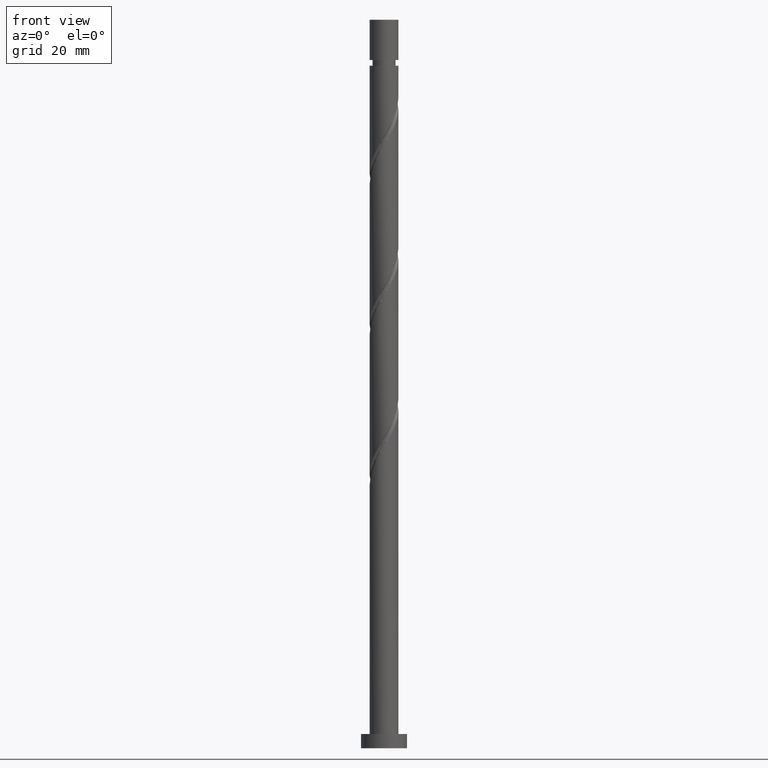
[diagram: clean part render]
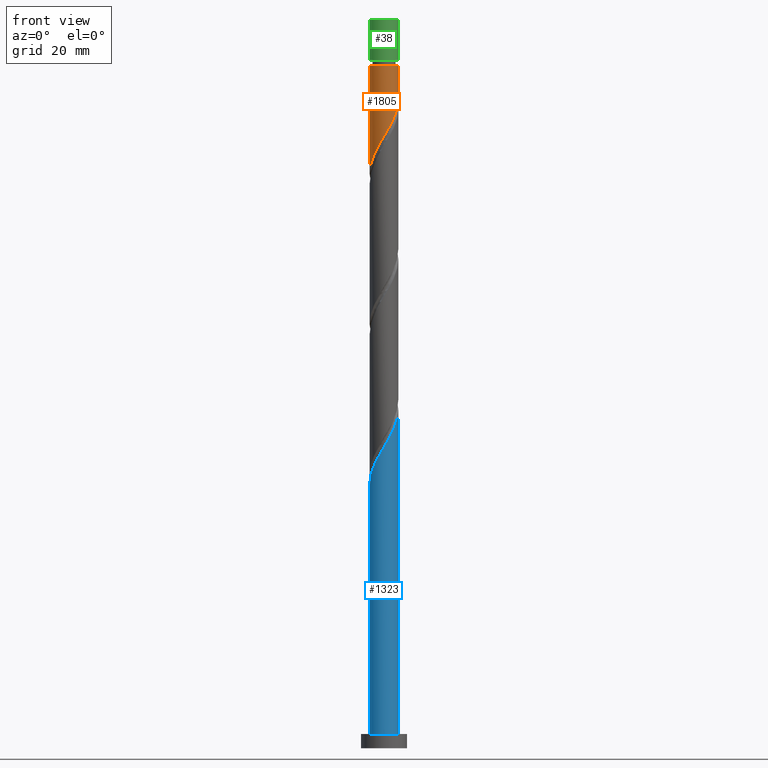
[diagram: same view with three faces highlighted in distinct colors, each labeled with its STEP entity id]
A machine part, front view with three faces highlighted in distinct colors.
Their STEP definitions:

[orange] entity #1805 — the highlighted cylindrical surface (edge-blend (fillet) strip) has radius 5 mm, axis along (-0, -0, -1).
#27 = CARTESIAN_POINT ( 'NONE',  ( 3.983038583135037225, -3.022483026463118172, 221.0952963200259376 ) ) ;
#37 = VERTEX_POINT ( 'NONE', #1499 ) ;
#49 = CARTESIAN_POINT ( 'NONE',  ( -5.000000000000000888, 7.589755835696142587E-15, 200.2698133979319266 ) ) ;
#105 = LINE ( 'NONE', #1458, #1373 ) ;
#136 = VECTOR ( 'NONE', #1096, 1000.000000000000000 ) ;
#146 = CARTESIAN_POINT ( 'NONE',  ( 4.323590631524821148, -2.573702359565720688, 222.0327963200259376 ) ) ;
#176 = CARTESIAN_POINT ( 'NONE',  ( 4.900000000000001243, -0.9949874371066227408, 224.8452963200259092 ) ) ;
#200 = ORIENTED_EDGE ( 'NONE', *, *, #1755, .T. ) ;
#218 = CARTESIAN_POINT ( 'NONE',  ( -5.000000000000002665, -0.06016448583194783373, 200.3701760861570449 ) ) ;
#264 = ORIENTED_EDGE ( 'NONE', *, *, #558, .T. ) ;
#294 = CARTESIAN_POINT ( 'NONE',  ( 5.000000000000000888, -1.119433014114475214E-15, 226.5198133979320119 ) ) ;
#365 = CARTESIAN_POINT ( 'NONE',  ( 0.000000000000000000, 0.000000000000000000, 254.0000000000000000 ) ) ;
#399 = CARTESIAN_POINT ( 'NONE',  ( 0.000000000000000000, 0.000000000000000000, 237.9702963200258807 ) ) ;
#450 = CARTESIAN_POINT ( 'NONE',  ( -1.547084842617166611, -4.787891840297518797, 210.7827963200258807 ) ) ;
#459 = CARTESIAN_POINT ( 'NONE',  ( 3.642486534745251969, -3.471263693360514768, 220.1577963200258807 ) ) ;
#475 = CARTESIAN_POINT ( 'NONE',  ( 2.778732953414366325, -4.194761370835347059, 218.2827963200259376 ) ) ;
#531 = DIRECTION ( 'NONE',  ( -1.000000000000000000, 0.000000000000000000, 0.000000000000000000 ) ) ;
#549 = ORIENTED_EDGE ( 'NONE', *, *, #790, .F. ) ;
#558 = EDGE_CURVE ( 'NONE', #1609, #1164, #989, .T. ) ;
#593 = CARTESIAN_POINT ( 'NONE',  ( 0.1203115516804378615, -4.998552303470702896, 213.5952963200259660 ) ) ;
#601 = CARTESIAN_POINT ( 'NONE',  ( 5.000000000000001776, -0.5025189076296011637, 225.6815423189683827 ) ) ;
#681 = DIRECTION ( 'NONE',  ( -0.000000000000000000, -0.000000000000000000, -1.000000000000000000 ) ) ;
#690 = DIRECTION ( 'NONE',  ( -0.000000000000000000, -0.000000000000000000, -1.000000000000000000 ) ) ;
#768 = CARTESIAN_POINT ( 'NONE',  ( 4.555741235911171749, -2.060393601091444093, 222.9702963200259376 ) ) ;
#776 = CARTESIAN_POINT ( 'NONE',  ( 4.999999999999984013, 6.123233995736755436E-16, 237.9702963200258807 ) ) ;
#790 = EDGE_CURVE ( 'NONE', #1609, #37, #105, .T. ) ;
#837 = CYLINDRICAL_SURFACE ( 'NONE', #1274, 5.000000000000000000 ) ;
#858 = CARTESIAN_POINT ( 'NONE',  ( -5.000000000000000888, 7.589755835696142587E-15, 200.2698133979319266 ) ) ;
#932 = CARTESIAN_POINT ( 'NONE',  ( -4.707916197378419376, -1.775642098820950698, 203.2827963200259092 ) ) ;
#972 = DIRECTION ( 'NONE',  ( -1.000000000000000000, 0.000000000000000000, 0.000000000000000000 ) ) ;
#976 = EDGE_CURVE ( 'NONE', #37, #1519, #1298, .T. ) ;
#989 = CIRCLE ( 'NONE', #1742, 4.999999999999984013 ) ;
#1024 = CARTESIAN_POINT ( 'NONE',  ( -2.060393601091443649, -4.555741235911171749, 209.8452963200260228 ) ) ;
#1034 = CARTESIAN_POINT ( 'NONE',  ( -2.573702359565720688, -4.323590631524821148, 208.9077963200258523 ) ) ;
#1054 = CARTESIAN_POINT ( 'NONE',  ( 2.277187526117657956, -4.451338784106884106, 217.3452963200259376 ) ) ;
#1088 = CARTESIAN_POINT ( 'NONE',  ( -4.846456322308672959, -1.229577616888952507, 202.3452963200259660 ) ) ;
#1096 = DIRECTION ( 'NONE',  ( -0.000000000000000000, -0.000000000000000000, -1.000000000000000000 ) ) ;
#1106 = FACE_OUTER_BOUND ( 'NONE', #1405, .T. ) ;
#1164 = VERTEX_POINT ( 'NONE', #1508 ) ;
#1174 = CARTESIAN_POINT ( 'NONE',  ( -0.4428900315960780931, -5.012108159702478360, 212.6577963200258807 ) ) ;
#1185 = CARTESIAN_POINT ( 'NONE',  ( 4.787891840297518797, -1.547084842617166833, 223.9077963200259092 ) ) ;
#1216 = CARTESIAN_POINT ( 'NONE',  ( -4.998552303470702896, -0.1203115516804380697, 200.4702963200259376 ) ) ;
#1274 = AXIS2_PLACEMENT_3D ( 'NONE', #365, #690, #531 ) ;
#1298 =( BOUNDED_CURVE ( )  B_SPLINE_CURVE ( 2, ( #294, #601, #176, #1185, #768, #146, #27, #459, #1353, #475, #1054, #1925, #1804, #1655, #593, #1174, #1771, #450, #1024, #1034, #1637, #1815, #1706, #1538, #1518, #932, #1088, #1675, #1216, #218, #49 ),
 .UNSPECIFIED., .F., .T. ) 
 B_SPLINE_CURVE_WITH_KNOTS ( ( 3, 2, 2, 2, 2, 2, 2, 2, 2, 2, 2, 2, 2, 2, 2, 3 ),
 ( 0.3045303401299219170, 0.3125000000000000000, 0.3214285714285714524, 0.3303571428571428492, 0.3392857142857143016, 0.3482142857142856984, 0.3571428571428571508, 0.3660714285714285476, 0.3750000000000000000, 0.3839285714285714524, 0.3928571428571428492, 0.4017857142857143016, 0.4107142857142856984, 0.4196428571428571508, 0.4285714285714285476, 0.4295303401299220836 ),
 .UNSPECIFIED. ) 
 CURVE ( )  GEOMETRIC_REPRESENTATION_ITEM ( )  RATIONAL_B_SPLINE_CURVE ( ( 0.9079949616361928655, 0.9039886423360556922, 0.9090909090909224943, 0.9033747362665975889, 0.9090909090909224943, 0.9033747362665975889, 0.9090909090909224943, 0.9033747362665975889, 0.9090909090909224943, 0.9033747362665975889, 0.9090909090909224943, 0.9033747362665975889, 0.9090909090909224943, 0.9033747362665975889, 0.9090909090909224943, 0.9033747362665975889, 0.9090909090909224943, 0.9033747362665975889, 0.9090909090909224943, 0.9033747362665975889, 0.9090909090909224943, 0.9033747362665975889, 0.9090909090909224943, 0.9033747362665975889, 0.9090909090909224943, 0.9033747362665975889, 0.9090909090909224943, 0.9033747362665975889, 0.9090909090909224943, 0.9084770030214642800, 0.9079949616361926434 ) ) 
 REPRESENTATION_ITEM ( '' )  );
#1353 = CARTESIAN_POINT ( 'NONE',  ( 3.210609744079810035, -3.833012532097932468, 219.2202963200259376 ) ) ;
#1373 = VECTOR ( 'NONE', #1734, 1000.000000000000000 ) ;
#1378 = ORIENTED_EDGE ( 'NONE', *, *, #976, .F. ) ;
#1405 = EDGE_LOOP ( 'NONE', ( #549, #264, #200, #1378 ) ) ;
#1458 = CARTESIAN_POINT ( 'NONE',  ( 5.000000000000000000, 6.123233995736766282E-16, 254.0000000000000000 ) ) ;
#1499 = CARTESIAN_POINT ( 'NONE',  ( 5.000000000000000000, -1.119433014114475214E-15, 226.5198133979320119 ) ) ;
#1508 = CARTESIAN_POINT ( 'NONE',  ( -4.999999999999984013, 0.000000000000000000, 237.9702963200258807 ) ) ;
#1518 = CARTESIAN_POINT ( 'NONE',  ( -4.451338784106884106, -2.277187526117659289, 204.2202963200259092 ) ) ;
#1519 = VERTEX_POINT ( 'NONE', #858 ) ;
#1538 = CARTESIAN_POINT ( 'NONE',  ( -4.194761370835347059, -2.778732953414366769, 205.1577963200258807 ) ) ;
#1609 = VERTEX_POINT ( 'NONE', #776 ) ;
#1637 = CARTESIAN_POINT ( 'NONE',  ( -3.022483026463118172, -3.983038583135037225, 207.9702963200259092 ) ) ;
#1655 = CARTESIAN_POINT ( 'NONE',  ( 0.6835131349569536496, -4.984996447238921213, 214.5327963200258807 ) ) ;
#1675 = CARTESIAN_POINT ( 'NONE',  ( -4.984996447238921213, -0.6835131349569537607, 201.4077963200259092 ) ) ;
#1706 = CARTESIAN_POINT ( 'NONE',  ( -3.833012532097932024, -3.210609744079810035, 206.0952963200259376 ) ) ;
#1712 = CARTESIAN_POINT ( 'NONE',  ( -5.000000000000000000, 0.000000000000000000, 254.0000000000000000 ) ) ;
#1734 = DIRECTION ( 'NONE',  ( -0.000000000000000000, -0.000000000000000000, -1.000000000000000000 ) ) ;
#1742 = AXIS2_PLACEMENT_3D ( 'NONE', #399, #681, #972 ) ;
#1755 = EDGE_CURVE ( 'NONE', #1164, #1519, #1861, .T. ) ;
#1771 = CARTESIAN_POINT ( 'NONE',  ( -0.9949874371066225187, -4.900000000000001243, 211.7202963200259660 ) ) ;
#1804 = CARTESIAN_POINT ( 'NONE',  ( 1.229577616888952285, -4.846456322308672959, 215.4702963200259660 ) ) ;
#1805 = ADVANCED_FACE ( 'NONE', ( #1106 ), #837, .T. ) ;
#1815 = CARTESIAN_POINT ( 'NONE',  ( -3.471263693360514768, -3.642486534745251969, 207.0327963200259092 ) ) ;
#1861 = LINE ( 'NONE', #1712, #136 ) ;
#1925 = CARTESIAN_POINT ( 'NONE',  ( 1.775642098820950698, -4.707916197378419376, 216.4077963200258807 ) ) ;

[blue] entity #1323 — the highlighted cylindrical surface (edge-blend (fillet) strip) has radius 5 mm, axis along (-0, -0, -1).
#86 = CARTESIAN_POINT ( 'NONE',  ( -4.323590631524826478, -2.573702359565722020, 96.40779632002586652 ) ) ;
#160 = VECTOR ( 'NONE', #949, 1000.000000000000000 ) ;
#369 = CARTESIAN_POINT ( 'NONE',  ( -0.6835131349569565362, -4.984996447238927431, 103.9077963200258807 ) ) ;
#386 = EDGE_CURVE ( 'NONE', #1915, #1895, #941, .T. ) ;
#415 = AXIS2_PLACEMENT_3D ( 'NONE', #808, #1244, #1844 ) ;
#420 = DIRECTION ( 'NONE',  ( -0.000000000000000000, -0.000000000000000000, -1.000000000000000000 ) ) ;
#444 = EDGE_CURVE ( 'NONE', #1733, #1895, #1714, .T. ) ;
#445 = CARTESIAN_POINT ( 'NONE',  ( 5.000000000000007994, -0.06016448583195121297, 118.0704165538947024 ) ) ;
#446 = AXIS2_PLACEMENT_3D ( 'NONE', #1307, #1780, #1601 ) ;
#506 = CARTESIAN_POINT ( 'NONE',  ( 5.000000000000000000, 6.123233995736766282E-16, 254.0000000000000000 ) ) ;
#513 = CARTESIAN_POINT ( 'NONE',  ( -0.1203115516804397211, -4.998552303470706448, 104.8452963200258381 ) ) ;
#523 = CARTESIAN_POINT ( 'NONE',  ( 1.547084842617166611, -4.787891840297527679, 107.6577963200258665 ) ) ;
#541 = CARTESIAN_POINT ( 'NONE',  ( -5.000000000000004441, -0.5025189076296187052, 92.75905032108347825 ) ) ;
#561 = CARTESIAN_POINT ( 'NONE',  ( -5.000000000000000000, 0.000000000000000000, 254.0000000000000000 ) ) ;
#642 = EDGE_CURVE ( 'NONE', #1306, #1733, #677, .T. ) ;
#664 = CARTESIAN_POINT ( 'NONE',  ( 2.573702359565722020, -4.323590631524826478, 109.5327963200258949 ) ) ;
#677 = LINE ( 'NONE', #561, #1872 ) ;
#701 = CARTESIAN_POINT ( 'NONE',  ( -3.983038583135042110, -3.022483026463119060, 97.34529632002583810 ) ) ;
#710 = CARTESIAN_POINT ( 'NONE',  ( -5.000000000000007105, -8.955464112915740375E-17, 91.92077924211987749 ) ) ;
#808 = CARTESIAN_POINT ( 'NONE',  ( 0.000000000000000000, 0.000000000000000000, 5.000000000000000000 ) ) ;
#814 = CARTESIAN_POINT ( 'NONE',  ( 0.4428900315960768164, -5.012108159702486354, 105.7827963200258949 ) ) ;
#861 = CARTESIAN_POINT ( 'NONE',  ( 5.000000000000007105, -5.597165070572337611E-16, 118.1707792421198349 ) ) ;
#865 = ORIENTED_EDGE ( 'NONE', *, *, #1296, .F. ) ;
#933 = ORIENTED_EDGE ( 'NONE', *, *, #642, .T. ) ;
#941 = LINE ( 'NONE', #506, #160 ) ;
#946 = CARTESIAN_POINT ( 'NONE',  ( 2.060393601091443205, -4.555741235911176190, 108.5952963200258807 ) ) ;
#949 = DIRECTION ( 'NONE',  ( -0.000000000000000000, -0.000000000000000000, -1.000000000000000000 ) ) ;
#984 = EDGE_LOOP ( 'NONE', ( #1439, #865, #933, #1396 ) ) ;
#985 = CARTESIAN_POINT ( 'NONE',  ( -2.277187526117662841, -4.451338784106885882, 101.0952963200258381 ) ) ;
#1003 = CARTESIAN_POINT ( 'NONE',  ( 4.984996447238924766, -0.6835131349569570913, 117.0327963200258949 ) ) ;
#1120 = CARTESIAN_POINT ( 'NONE',  ( 0.9949874371066214085, -4.900000000000006573, 106.7202963200258807 ) ) ;
#1128 = CARTESIAN_POINT ( 'NONE',  ( -3.642486534745257742, -3.471263693360518765, 98.28279632002588073 ) ) ;
#1244 = DIRECTION ( 'NONE',  ( 0.000000000000000000, 0.000000000000000000, 1.000000000000000000 ) ) ;
#1262 = CARTESIAN_POINT ( 'NONE',  ( -4.787891840297527679, -1.547084842617167055, 94.53279632002586652 ) ) ;
#1271 = CARTESIAN_POINT ( 'NONE',  ( -4.900000000000006573, -0.9949874371066218526, 93.59529632002586652 ) ) ;
#1285 = CARTESIAN_POINT ( 'NONE',  ( -3.210609744079814032, -3.833012532097933356, 99.22029632002585231 ) ) ;
#1296 = EDGE_CURVE ( 'NONE', #1306, #1915, #1717, .T. ) ;
#1306 = VERTEX_POINT ( 'NONE', #710 ) ;
#1307 = CARTESIAN_POINT ( 'NONE',  ( 0.000000000000000000, 0.000000000000000000, 254.0000000000000000 ) ) ;
#1323 = ADVANCED_FACE ( 'NONE', ( #1449 ), #1741, .T. ) ;
#1396 = ORIENTED_EDGE ( 'NONE', *, *, #444, .T. ) ;
#1400 = CARTESIAN_POINT ( 'NONE',  ( -5.000000000000000000, 0.000000000000000000, 5.000000000000000000 ) ) ;
#1403 = CARTESIAN_POINT ( 'NONE',  ( 4.846456322308677400, -1.229577616888955394, 116.0952963200258665 ) ) ;
#1422 = CARTESIAN_POINT ( 'NONE',  ( -1.229577616888955394, -4.846456322308677400, 102.9702963200258381 ) ) ;
#1439 = ORIENTED_EDGE ( 'NONE', *, *, #386, .F. ) ;
#1445 = CARTESIAN_POINT ( 'NONE',  ( 5.000000000000000000, 6.123233995736766282E-16, 5.000000000000000000 ) ) ;
#1449 = FACE_OUTER_BOUND ( 'NONE', #984, .T. ) ;
#1465 = CARTESIAN_POINT ( 'NONE',  ( 5.000000000000007105, -5.597165070572337611E-16, 118.1707792421198349 ) ) ;
#1484 = CARTESIAN_POINT ( 'NONE',  ( 4.998552303470706448, -0.1203115516804401514, 117.9702963200258381 ) ) ;
#1546 = CARTESIAN_POINT ( 'NONE',  ( 4.451338784106885882, -2.277187526117663285, 114.2202963200258523 ) ) ;
#1557 = CARTESIAN_POINT ( 'NONE',  ( 4.707916197378425593, -1.775642098820954251, 115.1577963200258807 ) ) ;
#1568 = CARTESIAN_POINT ( 'NONE',  ( -5.000000000000007994, -8.955464112915740375E-17, 91.92077924211987749 ) ) ;
#1586 = CARTESIAN_POINT ( 'NONE',  ( -1.775642098820954251, -4.707916197378425593, 102.0327963200259234 ) ) ;
#1601 = DIRECTION ( 'NONE',  ( -1.000000000000000000, 0.000000000000000000, 0.000000000000000000 ) ) ;
#1705 = CARTESIAN_POINT ( 'NONE',  ( 4.194761370835351499, -2.778732953414372098, 113.2827963200258665 ) ) ;
#1714 = CIRCLE ( 'NONE', #415, 5.000000000000000000 ) ;
#1715 = CARTESIAN_POINT ( 'NONE',  ( -2.778732953414371654, -4.194761370835351499, 100.1577963200258949 ) ) ;
#1717 =( BOUNDED_CURVE ( )  B_SPLINE_CURVE ( 2, ( #1568, #541, #1271, #1262, #1883, #86, #701, #1128, #1285, #1715, #985, #1586, #1422, #369, #513, #814, #1120, #523, #946, #664, #1852, #1724, #1864, #1705, #1546, #1557, #1403, #1003, #1484, #445, #1465 ),
 .UNSPECIFIED., .F., .T. ) 
 B_SPLINE_CURVE_WITH_KNOTS ( ( 3, 2, 2, 2, 2, 2, 2, 2, 2, 2, 2, 2, 2, 2, 2, 3 ),
 ( 0.05453034012992227092, 0.06250000000000000000, 0.07142857142857139685, 0.08035714285714290472, 0.08928571428571430157, 0.09821428571428569843, 0.1071428571428570953, 0.1160714285714286031, 0.1250000000000000000, 0.1339285714285713969, 0.1428571428571429047, 0.1517857142857143016, 0.1607142857142856984, 0.1696428571428570953, 0.1785714285714286031, 0.1795303401299221113 ),
 .UNSPECIFIED. ) 
 CURVE ( )  GEOMETRIC_REPRESENTATION_ITEM ( )  RATIONAL_B_SPLINE_CURVE ( ( 0.9079949616361988607, 0.9039886423360622425, 0.9090909090909289336, 0.9033747362666038061, 0.9090909090909289336, 0.9033747362666038061, 0.9090909090909289336, 0.9033747362666038061, 0.9090909090909289336, 0.9033747362666038061, 0.9090909090909289336, 0.9033747362666038061, 0.9090909090909289336, 0.9033747362666038061, 0.9090909090909289336, 0.9033747362666038061, 0.9090909090909289336, 0.9033747362666038061, 0.9090909090909289336, 0.9033747362666038061, 0.9090909090909289336, 0.9033747362666038061, 0.9090909090909289336, 0.9033747362666038061, 0.9090909090909289336, 0.9033747362666038061, 0.9090909090909289336, 0.9033747362666038061, 0.9090909090909289336, 0.9084770030214707193, 0.9079949616361990827 ) ) 
 REPRESENTATION_ITEM ( '' )  );
#1724 = CARTESIAN_POINT ( 'NONE',  ( 3.471263693360518765, -3.642486534745257742, 111.4077963200258807 ) ) ;
#1733 = VERTEX_POINT ( 'NONE', #1400 ) ;
#1741 = CYLINDRICAL_SURFACE ( 'NONE', #446, 5.000000000000000000 ) ;
#1780 = DIRECTION ( 'NONE',  ( -0.000000000000000000, -0.000000000000000000, -1.000000000000000000 ) ) ;
#1844 = DIRECTION ( 'NONE',  ( 1.000000000000000000, 0.000000000000000000, 0.000000000000000000 ) ) ;
#1852 = CARTESIAN_POINT ( 'NONE',  ( 3.022483026463119060, -3.983038583135042110, 110.4702963200258665 ) ) ;
#1864 = CARTESIAN_POINT ( 'NONE',  ( 3.833012532097933356, -3.210609744079814032, 112.3452963200258807 ) ) ;
#1872 = VECTOR ( 'NONE', #420, 1000.000000000000000 ) ;
#1883 = CARTESIAN_POINT ( 'NONE',  ( -4.555741235911176190, -2.060393601091443205, 95.47029632002588073 ) ) ;
#1895 = VERTEX_POINT ( 'NONE', #1445 ) ;
#1915 = VERTEX_POINT ( 'NONE', #861 ) ;

[green] entity #38 — the highlighted cylindrical surface (edge-blend (fillet) strip) has radius 5 mm, axis along (-0, -0, -1).
#38 = ADVANCED_FACE ( 'NONE', ( #305 ), #780, .T. ) ;
#76 = ORIENTED_EDGE ( 'NONE', *, *, #1618, .F. ) ;
#103 = VECTOR ( 'NONE', #1330, 1000.000000000000000 ) ;
#206 = AXIS2_PLACEMENT_3D ( 'NONE', #208, #636, #1361 ) ;
#208 = CARTESIAN_POINT ( 'NONE',  ( 0.000000000000000000, 0.000000000000000000, 239.9702963200258807 ) ) ;
#305 = FACE_OUTER_BOUND ( 'NONE', #731, .T. ) ;
#341 = DIRECTION ( 'NONE',  ( -0.000000000000000000, -0.000000000000000000, -1.000000000000000000 ) ) ;
#355 = VECTOR ( 'NONE', #341, 1000.000000000000000 ) ;
#381 = CARTESIAN_POINT ( 'NONE',  ( 5.000000000000000000, 6.123233995736766282E-16, 254.0000000000000000 ) ) ;
#429 = ORIENTED_EDGE ( 'NONE', *, *, #952, .T. ) ;
#524 = LINE ( 'NONE', #381, #355 ) ;
#527 = EDGE_CURVE ( 'NONE', #874, #1206, #1242, .T. ) ;
#534 = DIRECTION ( 'NONE',  ( 0.000000000000000000, 0.000000000000000000, 1.000000000000000000 ) ) ;
#636 = DIRECTION ( 'NONE',  ( -0.000000000000000000, -0.000000000000000000, -1.000000000000000000 ) ) ;
#645 = CARTESIAN_POINT ( 'NONE',  ( 4.999999999999984013, 6.123233995736755436E-16, 239.9702963200258807 ) ) ;
#721 = CIRCLE ( 'NONE', #206, 4.999999999999984013 ) ;
#731 = EDGE_LOOP ( 'NONE', ( #1455, #1656, #429, #76 ) ) ;
#735 = CARTESIAN_POINT ( 'NONE',  ( -5.000000000000000000, 0.000000000000000000, 254.0000000000000000 ) ) ;
#744 = CARTESIAN_POINT ( 'NONE',  ( -5.000000000000000000, 0.000000000000000000, 254.0000000000000000 ) ) ;
#751 = AXIS2_PLACEMENT_3D ( 'NONE', #1865, #534, #1111 ) ;
#759 = DIRECTION ( 'NONE',  ( -1.000000000000000000, 0.000000000000000000, 0.000000000000000000 ) ) ;
#780 = CYLINDRICAL_SURFACE ( 'NONE', #1694, 5.000000000000000000 ) ;
#874 = VERTEX_POINT ( 'NONE', #735 ) ;
#952 = EDGE_CURVE ( 'NONE', #874, #1589, #1783, .T. ) ;
#1066 = CARTESIAN_POINT ( 'NONE',  ( 0.000000000000000000, 0.000000000000000000, 254.0000000000000000 ) ) ;
#1111 = DIRECTION ( 'NONE',  ( 1.000000000000000000, 0.000000000000000000, 0.000000000000000000 ) ) ;
#1153 = EDGE_CURVE ( 'NONE', #1206, #1666, #524, .T. ) ;
#1196 = DIRECTION ( 'NONE',  ( -0.000000000000000000, -0.000000000000000000, -1.000000000000000000 ) ) ;
#1206 = VERTEX_POINT ( 'NONE', #1665 ) ;
#1242 = CIRCLE ( 'NONE', #751, 5.000000000000000000 ) ;
#1330 = DIRECTION ( 'NONE',  ( -0.000000000000000000, -0.000000000000000000, -1.000000000000000000 ) ) ;
#1361 = DIRECTION ( 'NONE',  ( -1.000000000000000000, 0.000000000000000000, 0.000000000000000000 ) ) ;
#1455 = ORIENTED_EDGE ( 'NONE', *, *, #1153, .F. ) ;
#1589 = VERTEX_POINT ( 'NONE', #1627 ) ;
#1618 = EDGE_CURVE ( 'NONE', #1666, #1589, #721, .T. ) ;
#1627 = CARTESIAN_POINT ( 'NONE',  ( -4.999999999999984013, 0.000000000000000000, 239.9702963200258807 ) ) ;
#1656 = ORIENTED_EDGE ( 'NONE', *, *, #527, .F. ) ;
#1665 = CARTESIAN_POINT ( 'NONE',  ( 5.000000000000000000, 6.123233995736766282E-16, 254.0000000000000000 ) ) ;
#1666 = VERTEX_POINT ( 'NONE', #645 ) ;
#1694 = AXIS2_PLACEMENT_3D ( 'NONE', #1066, #1196, #759 ) ;
#1783 = LINE ( 'NONE', #744, #103 ) ;
#1865 = CARTESIAN_POINT ( 'NONE',  ( 0.000000000000000000, 0.000000000000000000, 254.0000000000000000 ) ) ;